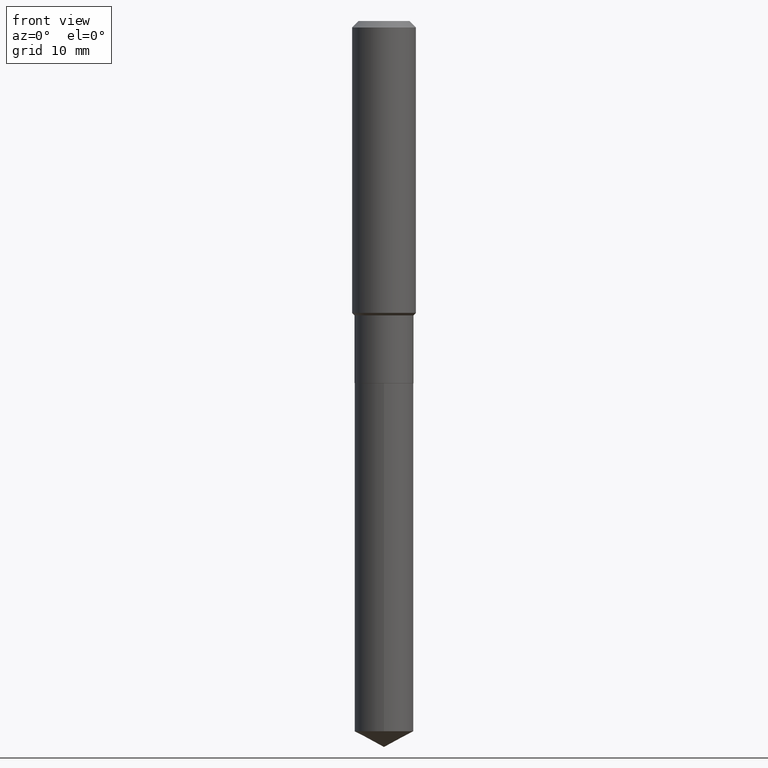
[diagram: clean part render]
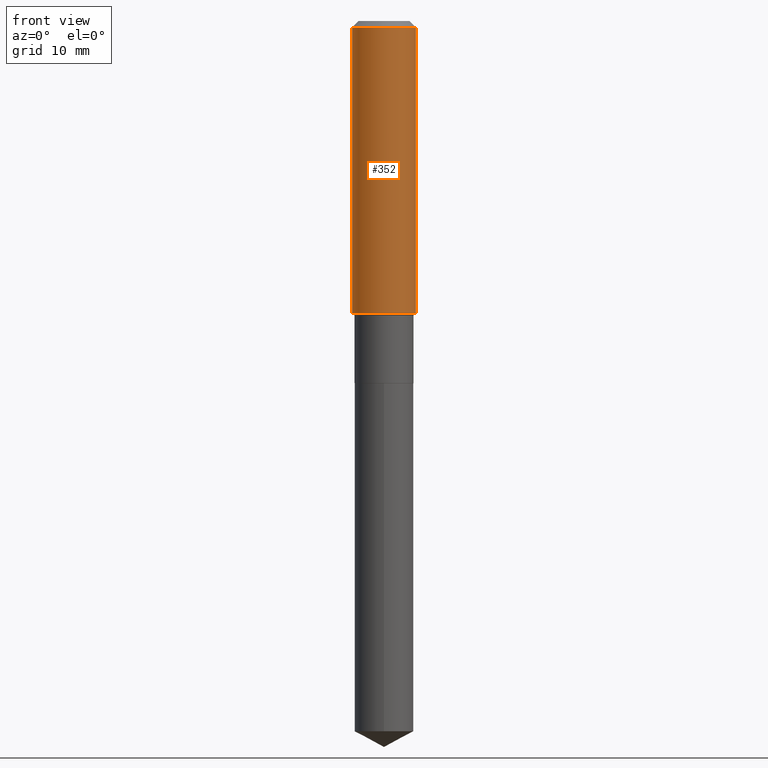
[diagram: same view with one face highlighted and labeled with its STEP entity id]
A machine part, front view. The second image highlights one B-rep face of the part: STEP entity #352.
In plain terms, the highlighted cylindrical surface (edge-blend (fillet) strip) has radius 4.0005 mm, axis along (-0, 0, 1).
Its self-contained STEP definition (entity closure, byte-faithful):
#29 = DIRECTION ( 'NONE',  ( 1.000000000000000000, -6.982962677686267499E-15, 4.876176775795936353E-29 ) ) ;
#40 = DIRECTION ( 'NONE',  ( -2.445468806185136877E-29, 3.491481338843145188E-15, 1.000000000000000000 ) ) ;
#55 = LINE ( 'NONE', #282, #268 ) ;
#84 = CARTESIAN_POINT ( 'NONE',  ( 3.522820088749998377E-29, -5.029653442670493908E-15, -1.440549999999999997 ) ) ;
#88 = EDGE_LOOP ( 'NONE', ( #186, #148, #255, #325 ) ) ;
#100 = FACE_OUTER_BOUND ( 'NONE', #88, .T. ) ;
#113 = VERTEX_POINT ( 'NONE', #330 ) ;
#118 = CARTESIAN_POINT ( 'NONE',  ( -0.1575000000000000011, -1.450712743599868094E-15, -0.03150000000000019451 ) ) ;
#124 = CIRCLE ( 'NONE', #444, 0.1575000000000000011 ) ;
#136 = VECTOR ( 'NONE', #40, 39.37007874015748143 ) ;
#148 = ORIENTED_EDGE ( 'NONE', *, *, #295, .T. ) ;
#178 = VERTEX_POINT ( 'NONE', #436 ) ;
#186 = ORIENTED_EDGE ( 'NONE', *, *, #424, .F. ) ;
#190 = CARTESIAN_POINT ( 'NONE',  ( 0.1575000000000001676, -6.129470064406082177E-15, -1.440549999999999997 ) ) ;
#206 = DIRECTION ( 'NONE',  ( -2.445468806185136877E-29, 3.491481338843145188E-15, 1.000000000000000000 ) ) ;
#216 = CARTESIAN_POINT ( 'NONE',  ( 0.000000000000000000, 0.000000000000000000, 0.000000000000000000 ) ) ;
#217 = VERTEX_POINT ( 'NONE', #118 ) ;
#247 = CYLINDRICAL_SURFACE ( 'NONE', #260, 0.1575000000000000844 ) ;
#248 = DIRECTION ( 'NONE',  ( -2.445468806185136597E-29, 3.491481338843145583E-15, 1.000000000000000000 ) ) ;
#255 = ORIENTED_EDGE ( 'NONE', *, *, #274, .T. ) ;
#260 = AXIS2_PLACEMENT_3D ( 'NONE', #216, #324, #29 ) ;
#268 = VECTOR ( 'NONE', #206, 39.37007874015748143 ) ;
#271 = DIRECTION ( 'NONE',  ( -2.445468806185136597E-29, 3.491481338843145583E-15, 1.000000000000000000 ) ) ;
#273 = AXIS2_PLACEMENT_3D ( 'NONE', #84, #271, #455 ) ;
#274 = EDGE_CURVE ( 'NONE', #353, #113, #396, .T. ) ;
#278 = CIRCLE ( 'NONE', #273, 0.1575000000000001676 ) ;
#282 = CARTESIAN_POINT ( 'NONE',  ( -0.1575000000000000844, 1.119104808822158392E-15, -7.747322767151481189E-30 ) ) ;
#295 = EDGE_CURVE ( 'NONE', #178, #353, #278, .T. ) ;
#324 = DIRECTION ( 'NONE',  ( -2.445468806185136597E-29, 3.491481338843145583E-15, 1.000000000000000000 ) ) ;
#325 = ORIENTED_EDGE ( 'NONE', *, *, #438, .F. ) ;
#330 = CARTESIAN_POINT ( 'NONE',  ( 0.1575000000000000011, -1.209798283909146741E-15, -0.03150000000000019451 ) ) ;
#352 = ADVANCED_FACE ( 'NONE', ( #100 ), #247, .T. ) ;
#353 = VERTEX_POINT ( 'NONE', #190 ) ;
#386 = DIRECTION ( 'NONE',  ( 1.000000000000000000, -6.982962677686265922E-15, 0.000000000000000000 ) ) ;
#396 = LINE ( 'NONE', #448, #136 ) ;
#424 = EDGE_CURVE ( 'NONE', #178, #217, #55, .T. ) ;
#426 = CARTESIAN_POINT ( 'NONE',  ( 7.703226739483228723E-31, -1.099816621735597661E-16, -0.03150000000000019451 ) ) ;
#436 = CARTESIAN_POINT ( 'NONE',  ( -0.1575000000000001676, -3.910548633848334727E-15, -1.440549999999999997 ) ) ;
#438 = EDGE_CURVE ( 'NONE', #217, #113, #124, .T. ) ;
#444 = AXIS2_PLACEMENT_3D ( 'NONE', #426, #248, #386 ) ;
#448 = CARTESIAN_POINT ( 'NONE',  ( 0.1575000000000000844, -1.099816621735587677E-15, 7.679978421878603638E-30 ) ) ;
#455 = DIRECTION ( 'NONE',  ( 1.000000000000000000, -6.982962677686267499E-15, 0.000000000000000000 ) ) ;